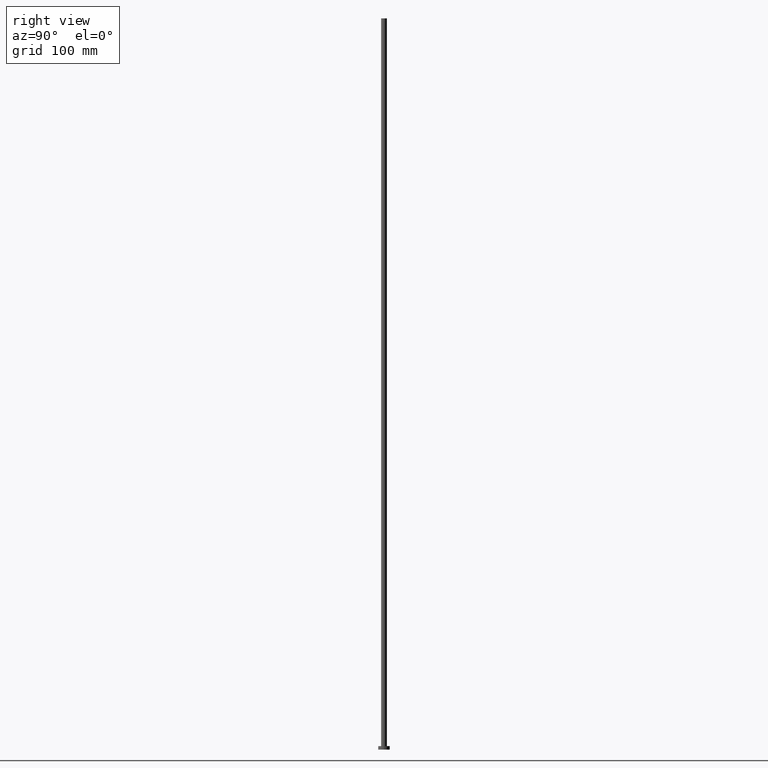
[diagram: clean part render]
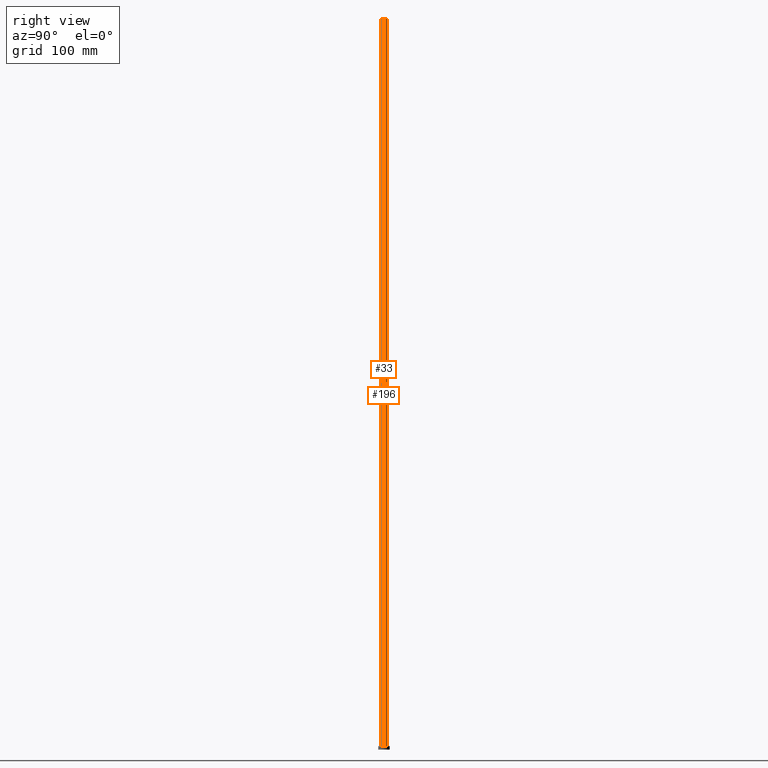
[diagram: same view with one multi-face feature highlighted, each face labeled with its STEP entity id]
A machine part, right view. The highlighted faces form ONE feature: a constant-radius fillet chain: 2 tangent blend faces with common blend radius 2.5 mm. The faces share edges in the B-rep.
Their STEP definitions:
[1] entity #33 (Cylinder):
#13 = VERTEX_POINT ( 'NONE', #205 ) ;
#14 = ORIENTED_EDGE ( 'NONE', *, *, #15, .F. ) ;
#15 = EDGE_CURVE ( 'NONE', #211, #74, #232, .T. ) ;
#17 = CARTESIAN_POINT ( 'NONE',  ( -2.500000000000000000, 0.000000000000000000, 630.0000000000000000 ) ) ;
#32 = ORIENTED_EDGE ( 'NONE', *, *, #95, .T. ) ;
#33 = ADVANCED_FACE ( 'NONE', ( #86 ), #183, .T. ) ;
#39 = CARTESIAN_POINT ( 'NONE',  ( 2.500000000000000000, 3.061616997868383141E-16, 3.000000000000000000 ) ) ;
#43 = CIRCLE ( 'NONE', #105, 2.500000000000000000 ) ;
#48 = LINE ( 'NONE', #148, #157 ) ;
#53 = EDGE_CURVE ( 'NONE', #74, #195, #48, .T. ) ;
#59 = DIRECTION ( 'NONE',  ( 0.000000000000000000, 0.000000000000000000, 1.000000000000000000 ) ) ;
#67 = DIRECTION ( 'NONE',  ( -0.000000000000000000, -0.000000000000000000, -1.000000000000000000 ) ) ;
#74 = VERTEX_POINT ( 'NONE', #147 ) ;
#77 = EDGE_LOOP ( 'NONE', ( #92, #14, #32, #96 ) ) ;
#79 = VECTOR ( 'NONE', #255, 1000.000000000000000 ) ;
#86 = FACE_OUTER_BOUND ( 'NONE', #77, .T. ) ;
#92 = ORIENTED_EDGE ( 'NONE', *, *, #53, .F. ) ;
#95 = EDGE_CURVE ( 'NONE', #211, #13, #253, .T. ) ;
#96 = ORIENTED_EDGE ( 'NONE', *, *, #214, .T. ) ;
#105 = AXIS2_PLACEMENT_3D ( 'NONE', #188, #166, #207 ) ;
#139 = CARTESIAN_POINT ( 'NONE',  ( 0.000000000000000000, 0.000000000000000000, 630.0000000000000000 ) ) ;
#147 = CARTESIAN_POINT ( 'NONE',  ( 2.500000000000000000, 3.061616997868383141E-16, 630.0000000000000000 ) ) ;
#148 = CARTESIAN_POINT ( 'NONE',  ( 2.500000000000000000, 3.061616997868383141E-16, 630.0000000000000000 ) ) ;
#157 = VECTOR ( 'NONE', #67, 1000.000000000000000 ) ;
#160 = AXIS2_PLACEMENT_3D ( 'NONE', #139, #163, #220 ) ;
#163 = DIRECTION ( 'NONE',  ( -0.000000000000000000, -0.000000000000000000, -1.000000000000000000 ) ) ;
#166 = DIRECTION ( 'NONE',  ( 0.000000000000000000, 0.000000000000000000, 1.000000000000000000 ) ) ;
#176 = DIRECTION ( 'NONE',  ( 1.000000000000000000, 0.000000000000000000, 0.000000000000000000 ) ) ;
#183 = CYLINDRICAL_SURFACE ( 'NONE', #160, 2.500000000000000000 ) ;
#185 = CARTESIAN_POINT ( 'NONE',  ( 0.000000000000000000, 0.000000000000000000, 630.0000000000000000 ) ) ;
#188 = CARTESIAN_POINT ( 'NONE',  ( 0.000000000000000000, 0.000000000000000000, 3.000000000000000000 ) ) ;
#195 = VERTEX_POINT ( 'NONE', #39 ) ;
#205 = CARTESIAN_POINT ( 'NONE',  ( -2.500000000000000000, 0.000000000000000000, 3.000000000000000000 ) ) ;
#207 = DIRECTION ( 'NONE',  ( 1.000000000000000000, 0.000000000000000000, 0.000000000000000000 ) ) ;
#211 = VERTEX_POINT ( 'NONE', #247 ) ;
#214 = EDGE_CURVE ( 'NONE', #13, #195, #43, .T. ) ;
#220 = DIRECTION ( 'NONE',  ( -1.000000000000000000, 0.000000000000000000, 0.000000000000000000 ) ) ;
#232 = CIRCLE ( 'NONE', #241, 2.500000000000000000 ) ;
#241 = AXIS2_PLACEMENT_3D ( 'NONE', #185, #59, #176 ) ;
#247 = CARTESIAN_POINT ( 'NONE',  ( -2.500000000000000000, 0.000000000000000000, 630.0000000000000000 ) ) ;
#253 = LINE ( 'NONE', #17, #79 ) ;
#255 = DIRECTION ( 'NONE',  ( -0.000000000000000000, -0.000000000000000000, -1.000000000000000000 ) ) ;
[2] entity #196 (Cylinder):
#1 = EDGE_CURVE ( 'NONE', #195, #13, #19, .T. ) ;
#11 = ORIENTED_EDGE ( 'NONE', *, *, #95, .F. ) ;
#13 = VERTEX_POINT ( 'NONE', #205 ) ;
#16 = DIRECTION ( 'NONE',  ( -0.000000000000000000, -0.000000000000000000, -1.000000000000000000 ) ) ;
#17 = CARTESIAN_POINT ( 'NONE',  ( -2.500000000000000000, 0.000000000000000000, 630.0000000000000000 ) ) ;
#19 = CIRCLE ( 'NONE', #143, 2.500000000000000000 ) ;
#38 = FACE_OUTER_BOUND ( 'NONE', #173, .T. ) ;
#39 = CARTESIAN_POINT ( 'NONE',  ( 2.500000000000000000, 3.061616997868383141E-16, 3.000000000000000000 ) ) ;
#47 = CIRCLE ( 'NONE', #121, 2.500000000000000000 ) ;
#48 = LINE ( 'NONE', #148, #157 ) ;
#53 = EDGE_CURVE ( 'NONE', #74, #195, #48, .T. ) ;
#61 = DIRECTION ( 'NONE',  ( 1.000000000000000000, 0.000000000000000000, 0.000000000000000000 ) ) ;
#67 = DIRECTION ( 'NONE',  ( -0.000000000000000000, -0.000000000000000000, -1.000000000000000000 ) ) ;
#73 = EDGE_CURVE ( 'NONE', #74, #211, #47, .T. ) ;
#74 = VERTEX_POINT ( 'NONE', #147 ) ;
#79 = VECTOR ( 'NONE', #255, 1000.000000000000000 ) ;
#94 = ORIENTED_EDGE ( 'NONE', *, *, #1, .T. ) ;
#95 = EDGE_CURVE ( 'NONE', #211, #13, #253, .T. ) ;
#99 = DIRECTION ( 'NONE',  ( 0.000000000000000000, 0.000000000000000000, 1.000000000000000000 ) ) ;
#113 = DIRECTION ( 'NONE',  ( 1.000000000000000000, 0.000000000000000000, 0.000000000000000000 ) ) ;
#117 = CYLINDRICAL_SURFACE ( 'NONE', #248, 2.500000000000000000 ) ;
#118 = DIRECTION ( 'NONE',  ( -1.000000000000000000, 0.000000000000000000, 0.000000000000000000 ) ) ;
#121 = AXIS2_PLACEMENT_3D ( 'NONE', #222, #99, #61 ) ;
#143 = AXIS2_PLACEMENT_3D ( 'NONE', #168, #250, #113 ) ;
#147 = CARTESIAN_POINT ( 'NONE',  ( 2.500000000000000000, 3.061616997868383141E-16, 630.0000000000000000 ) ) ;
#148 = CARTESIAN_POINT ( 'NONE',  ( 2.500000000000000000, 3.061616997868383141E-16, 630.0000000000000000 ) ) ;
#157 = VECTOR ( 'NONE', #67, 1000.000000000000000 ) ;
#168 = CARTESIAN_POINT ( 'NONE',  ( 0.000000000000000000, 0.000000000000000000, 3.000000000000000000 ) ) ;
#173 = EDGE_LOOP ( 'NONE', ( #210, #192, #94, #11 ) ) ;
#192 = ORIENTED_EDGE ( 'NONE', *, *, #53, .T. ) ;
#195 = VERTEX_POINT ( 'NONE', #39 ) ;
#196 = ADVANCED_FACE ( 'NONE', ( #38 ), #117, .T. ) ;
#197 = CARTESIAN_POINT ( 'NONE',  ( 0.000000000000000000, 0.000000000000000000, 630.0000000000000000 ) ) ;
#205 = CARTESIAN_POINT ( 'NONE',  ( -2.500000000000000000, 0.000000000000000000, 3.000000000000000000 ) ) ;
#210 = ORIENTED_EDGE ( 'NONE', *, *, #73, .F. ) ;
#211 = VERTEX_POINT ( 'NONE', #247 ) ;
#222 = CARTESIAN_POINT ( 'NONE',  ( 0.000000000000000000, 0.000000000000000000, 630.0000000000000000 ) ) ;
#247 = CARTESIAN_POINT ( 'NONE',  ( -2.500000000000000000, 0.000000000000000000, 630.0000000000000000 ) ) ;
#248 = AXIS2_PLACEMENT_3D ( 'NONE', #197, #16, #118 ) ;
#250 = DIRECTION ( 'NONE',  ( 0.000000000000000000, 0.000000000000000000, 1.000000000000000000 ) ) ;
#253 = LINE ( 'NONE', #17, #79 ) ;
#255 = DIRECTION ( 'NONE',  ( -0.000000000000000000, -0.000000000000000000, -1.000000000000000000 ) ) ;